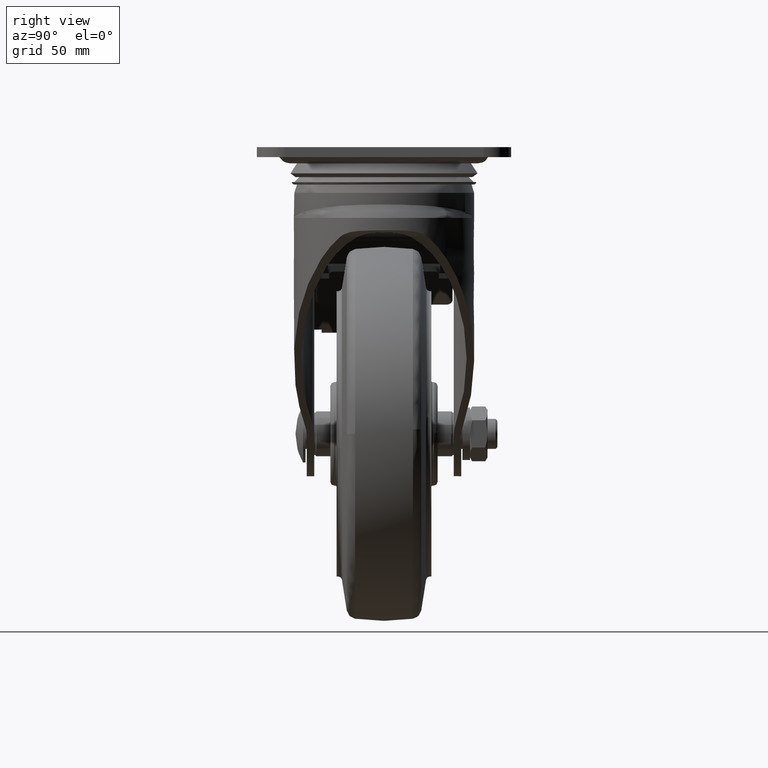
[diagram: clean part render]
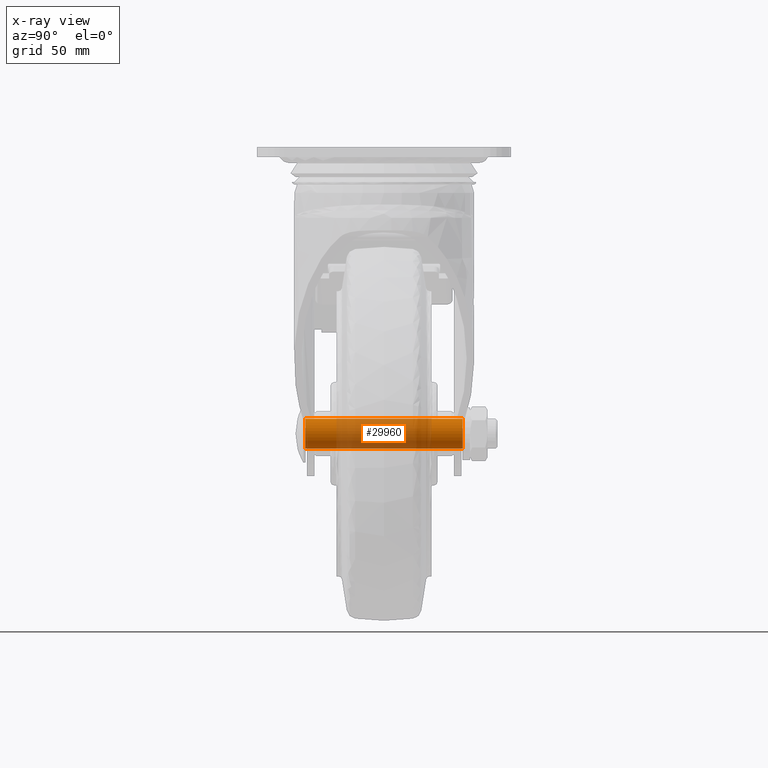
[diagram: x-ray — body ghosted, one internal face saturated and labeled with its STEP entity id]
A machine part, right view, then the same camera in x-ray: the body is ghosted and one INTERNAL B-rep face — a face not visible from any outside direction — is saturated and labeled: STEP entity #29960.
In plain terms, the highlighted face is a freeform B-spline surface patch.
Its self-contained STEP definition (entity closure, byte-faithful):
#29814=CARTESIAN_POINT('',(-4.581333857642716,-33.075000000000003,3.874452230292042));
#29815=CARTESIAN_POINT('',(-4.470448699389019,-33.075000000000003,4.005568037023624));
#29816=CARTESIAN_POINT('',(-4.352246226073658,-33.075000000000003,4.130127454162405));
#29817=CARTESIAN_POINT('',(-0.222118771911252,-33.074999999999996,8.482373680236007));
#29818=CARTESIAN_POINT('',(4.130127454162349,-33.075000000000003,4.352246226073601));
#29819=CARTESIAN_POINT('',(8.482373680235948,-33.074999999999996,0.222118771911195));
#29820=CARTESIAN_POINT('',(4.352246226073544,-33.075000000000003,-4.130127454162405));
#29821=CARTESIAN_POINT('',(0.222118771911139,-33.074999999999996,-8.482373680236007));
#29822=CARTESIAN_POINT('',(-4.130127454162462,-33.075000000000003,-4.352246226073601));
#29823=CARTESIAN_POINT('',(-4.581333857642716,33.114375000000003,3.874452230292042));
#29824=CARTESIAN_POINT('',(-4.470448699389019,33.114375000000010,4.005568037023624));
#29825=CARTESIAN_POINT('',(-4.352246226073658,33.114375000000010,4.130127454162405));
#29826=CARTESIAN_POINT('',(-0.222118771911252,33.114375000000010,8.482373680236007));
#29827=CARTESIAN_POINT('',(4.130127454162349,33.114375000000010,4.352246226073601));
#29828=CARTESIAN_POINT('',(8.482373680235948,33.114375000000010,0.222118771911195));
#29829=CARTESIAN_POINT('',(4.352246226073544,33.114375000000010,-4.130127454162405));
#29830=CARTESIAN_POINT('',(0.222118771911139,33.114375000000010,-8.482373680236007));
#29831=CARTESIAN_POINT('',(-4.130127454162462,33.114375000000010,-4.352246226073601));
#29839=(BOUNDED_SURFACE()B_SPLINE_SURFACE(2,1,((#29814,#29823),(#29815,#29824),(#29816,#29825),(#29817,#29826),(#29818,#29827),(#29819,#29828),(#29820,#29829),(#29821,#29830),(#29822,#29831)),.UNSPECIFIED.,.F.,.F.,.U.)B_SPLINE_SURFACE_WITH_KNOTS((3,2,2,2,3),(2,2),(0.0,0.397645019878160,10.338770516832160,20.279896013786150,30.221021510740140),(0.0,66.189375000000027),.UNSPECIFIED.)GEOMETRIC_REPRESENTATION_ITEM()RATIONAL_B_SPLINE_SURFACE(((0.977505800795127,0.977505800795127),(0.988284271247462,0.988284271247462),(1.0,1.0),(0.707106781186548,0.707106781186548),(1.0,1.0),(0.707106781186548,0.707106781186548),(1.0,1.0),(0.707106781186548,0.707106781186548),(1.0,1.0)))REPRESENTATION_ITEM('')SURFACE());
#29840=CARTESIAN_POINT('',(-4.581334386890070,31.500000000002050,3.874452867187674));
#29841=VERTEX_POINT('',#29840);
#29842=CARTESIAN_POINT('',(-5.684342E-014,31.500000000000000,5.999999999999830));
#29843=VERTEX_POINT('',#29842);
#29844=CARTESIAN_POINT('',(-4.581334386890070,31.500000000002050,3.874452867187674));
#29845=CARTESIAN_POINT('',(-4.178315269740406,31.500000000001879,4.351503840046598));
#29846=CARTESIAN_POINT('',(-3.429460812025594,31.500000000001560,4.997930189438035));
#29847=CARTESIAN_POINT('',(-1.872869367584610,31.500000000000849,5.785441295448821));
#29848=CARTESIAN_POINT('',(-0.760365430834218,31.500000000000441,6.000809706778524));
#29849=CARTESIAN_POINT('',(-5.684342E-014,31.500000000000000,5.999999999999830));
#29850=B_SPLINE_CURVE_WITH_KNOTS('',3,(#29844,#29845,#29846,#29847,#29848,#29849),.UNSPECIFIED.,.F.,.U.,(4,1,1,4),(0.000000089094434,1.873373471484985,2.932201303521822,5.212849969566464),.UNSPECIFIED.);
#29851=EDGE_CURVE('',#29841,#29843,#29850,.T.);
#29852=ORIENTED_EDGE('',*,*,#29851,.F.);
#29853=CARTESIAN_POINT('',(-4.581334388059084,-31.500000000000011,3.874452865805388));
#29854=VERTEX_POINT('',#29853);
#29855=CARTESIAN_POINT('',(-4.581334388059084,-31.500000000000011,3.874452865805388));
#29856=CARTESIAN_POINT('',(-4.581334386890070,31.500000000002050,3.874452867187674));
#29857=QUASI_UNIFORM_CURVE('',1,(#29855,#29856),.UNSPECIFIED.,.F.,.U.);
#29858=EDGE_CURVE('',#29854,#29841,#29857,.T.);
#29859=ORIENTED_EDGE('',*,*,#29858,.F.);
#29860=CARTESIAN_POINT('',(-5.684342E-014,-31.500000000000000,5.999999999999830));
#29861=VERTEX_POINT('',#29860);
#29862=CARTESIAN_POINT('',(-4.581334388059084,-31.500000000000011,3.874452865805388));
#29863=CARTESIAN_POINT('',(-4.213323821136394,-31.500000000000011,4.309965616528108));
#29864=CARTESIAN_POINT('',(-3.433860937361729,-31.499999999999979,5.001759343767882));
#29865=CARTESIAN_POINT('',(-1.873025816621857,-31.500000000000039,5.791449667027084));
#29866=CARTESIAN_POINT('',(-0.705999279841289,-31.500000000000000,6.000582281411428));
#29867=CARTESIAN_POINT('',(-5.684342E-014,-31.500000000000000,5.999999999999830));
#29868=B_SPLINE_CURVE_WITH_KNOTS('',3,(#29862,#29863,#29864,#29865,#29866,#29867),.UNSPECIFIED.,.F.,.U.,(4,1,1,4),(0.000000089094270,1.710475300791184,3.095101805493334,5.212849971376844),.UNSPECIFIED.);
#29869=EDGE_CURVE('',#29854,#29861,#29868,.T.);
#29870=ORIENTED_EDGE('',*,*,#29869,.T.);
#29871=CARTESIAN_POINT('',(5.999999999998861,-31.500000000000000,-0.000003307428363));
#29872=VERTEX_POINT('',#29871);
#29873=CARTESIAN_POINT('',(-5.684342E-014,-31.500000000000000,5.999999999999830));
#29874=CARTESIAN_POINT('',(0.638190360733784,-31.500000000000028,6.000393515256384));
#29875=CARTESIAN_POINT('',(1.644223124785011,-31.499999999999950,5.837855849953559));
#29876=CARTESIAN_POINT('',(2.864303129945427,-31.500000000000028,5.305865897004692));
#29877=CARTESIAN_POINT('',(3.809903995883099,-31.499999999999989,4.682451970186364));
#29878=CARTESIAN_POINT('',(4.534508333343463,-31.500000000000021,3.975402602073566));
#29879=CARTESIAN_POINT('',(5.182699763416541,-31.500000000000028,3.078582114481415));
#29880=CARTESIAN_POINT('',(5.796620701379285,-31.499999999999851,1.840447471246423));
#29881=CARTESIAN_POINT('',(6.000595794160542,-31.500000000000380,0.711857476441165));
#29882=CARTESIAN_POINT('',(5.999999999998861,-31.500000000000000,-0.000003307428363));
#29883=B_SPLINE_CURVE_WITH_KNOTS('',3,(#29873,#29874,#29875,#29876,#29877,#29878,#29879,#29880,#29881,#29882),.UNSPECIFIED.,.F.,.U.,(4,1,1,1,1,1,1,4),(0.000000254199069,1.914409426580395,3.018896298968556,3.976149413003196,5.301433270897665,6.037753552051791,7.289525101184353,9.424838961412345),.UNSPECIFIED.);
#29884=EDGE_CURVE('',#29861,#29872,#29883,.T.);
#29885=ORIENTED_EDGE('',*,*,#29884,.T.);
#29886=CARTESIAN_POINT('',(-5.684342E-014,-31.500000000000000,-5.999999999999830));
#29887=VERTEX_POINT('',#29886);
#29888=CARTESIAN_POINT('',(5.999999999998861,-31.500000000000000,-0.000003307428363));
#29889=CARTESIAN_POINT('',(6.000495286385196,-31.500000000000050,-0.687296171723726));
#29890=CARTESIAN_POINT('',(5.778285457564614,-31.499999999999869,-1.963236094531975));
#29891=CARTESIAN_POINT('',(4.912823391541159,-31.500000000000291,-3.582491009945367));
#29892=CARTESIAN_POINT('',(3.822999336929458,-31.499999999999609,-4.699247649432803));
#29893=CARTESIAN_POINT('',(2.713636518338647,-31.500000000000739,-5.392041699517275));
#29894=CARTESIAN_POINT('',(1.472501446280201,-31.499999999999460,-5.870822424201533));
#29895=CARTESIAN_POINT('',(0.564534583961164,-31.500000000000441,-6.000242818688029));
#29896=CARTESIAN_POINT('',(-5.684342E-014,-31.500000000000000,-5.999999999999830));
#29897=B_SPLINE_CURVE_WITH_KNOTS('',3,(#29888,#29889,#29890,#29891,#29892,#29893,#29894,#29895,#29896),.UNSPECIFIED.,.F.,.U.,(4,1,1,1,1,1,4),(0.000000255349592,2.061675425587431,3.828884660922242,5.448692185213617,6.700466053241069,7.731318516155196,9.424835233146334),.UNSPECIFIED.);
#29898=EDGE_CURVE('',#29872,#29887,#29897,.T.);
#29899=ORIENTED_EDGE('',*,*,#29898,.T.);
#29900=CARTESIAN_POINT('',(-4.130126723988932,-31.500000000000011,-4.352245780640549));
#29901=VERTEX_POINT('',#29900);
#29902=CARTESIAN_POINT('',(-5.684342E-014,-31.500000000000000,-5.999999999999830));
#29903=CARTESIAN_POINT('',(-0.711879504003936,-31.500000000000011,-6.000609079338815));
#29904=CARTESIAN_POINT('',(-1.707909609066392,-31.500000000000000,-5.820529854637965));
#29905=CARTESIAN_POINT('',(-3.093487474379242,-31.500000000000021,-5.189880073546668));
#29906=CARTESIAN_POINT('',(-3.751597536389882,-31.500000000000000,-4.711668457798398));
#29907=CARTESIAN_POINT('',(-4.130126723988932,-31.500000000000011,-4.352245780640549));
#29908=B_SPLINE_CURVE_WITH_KNOTS('',3,(#29902,#29903,#29904,#29905,#29906,#29907),.UNSPECIFIED.,.F.,.U.,(4,1,1,4),(0.000000030205444,2.135351778593823,2.989491052212633,4.555415629004779),.UNSPECIFIED.);
#29909=EDGE_CURVE('',#29887,#29901,#29908,.T.);
#29910=ORIENTED_EDGE('',*,*,#29909,.T.);
#29911=CARTESIAN_POINT('',(-4.130126722002759,31.499999999998170,-4.352245782525367));
#29912=VERTEX_POINT('',#29911);
#29913=CARTESIAN_POINT('',(-4.130126723988932,-31.500000000000011,-4.352245780640549));
#29914=CARTESIAN_POINT('',(-4.130126722002759,31.499999999998170,-4.352245782525367));
#29915=QUASI_UNIFORM_CURVE('',1,(#29913,#29914),.UNSPECIFIED.,.F.,.U.);
#29916=EDGE_CURVE('',#29901,#29912,#29915,.T.);
#29917=ORIENTED_EDGE('',*,*,#29916,.T.);
#29918=CARTESIAN_POINT('',(-5.684342E-014,31.500000000000000,-5.999999999999830));
#29919=VERTEX_POINT('',#29918);
#29920=CARTESIAN_POINT('',(-5.684342E-014,31.500000000000000,-5.999999999999830));
#29921=CARTESIAN_POINT('',(-0.711866174320958,31.499999999999680,-6.000602533372848));
#29922=CARTESIAN_POINT('',(-1.802804207974526,31.499999999999218,-5.803402968322031));
#29923=CARTESIAN_POINT('',(-3.175686261966646,31.499999999998622,-5.138708727884477));
#29924=CARTESIAN_POINT('',(-3.820391848069383,31.499999999998309,-4.646271218123972));
#29925=CARTESIAN_POINT('',(-4.130126722002759,31.499999999998170,-4.352245782525367));
#29926=B_SPLINE_CURVE_WITH_KNOTS('',3,(#29920,#29921,#29922,#29923,#29924,#29925),.UNSPECIFIED.,.F.,.U.,(4,1,1,4),(0.000000030205476,2.135351777310240,3.274204930457205,4.555415626266447),.UNSPECIFIED.);
#29927=EDGE_CURVE('',#29919,#29912,#29926,.T.);
#29928=ORIENTED_EDGE('',*,*,#29927,.F.);
#29929=CARTESIAN_POINT('',(5.999999999998861,31.500000000000000,-0.000003307428387));
#29930=VERTEX_POINT('',#29929);
#29931=CARTESIAN_POINT('',(5.999999999998861,31.500000000000000,-0.000003307428387));
#29932=CARTESIAN_POINT('',(6.000231598685525,31.500000000000000,-0.589063669157210));
#29933=CARTESIAN_POINT('',(5.825192693063862,31.500000000000000,-1.767086402514694));
#29934=CARTESIAN_POINT('',(5.167545752508200,31.500000000000082,-3.157654606622901));
#29935=CARTESIAN_POINT('',(4.397662836118027,31.499999999999979,-4.119166313651066));
#29936=CARTESIAN_POINT('',(3.613608889779752,31.500000000000021,-4.829871011073267));
#29937=CARTESIAN_POINT('',(2.713659662882515,31.500000000000011,-5.392068277197882));
#29938=CARTESIAN_POINT('',(1.472501596607334,31.499999999999979,-5.870834151122812));
#29939=CARTESIAN_POINT('',(0.564532507833974,31.500000000000050,-6.000221137047064));
#29940=CARTESIAN_POINT('',(-5.684342E-014,31.500000000000000,-5.999999999999830));
#29941=B_SPLINE_CURVE_WITH_KNOTS('',3,(#29931,#29932,#29933,#29934,#29935,#29936,#29937,#29938,#29939,#29940),.UNSPECIFIED.,.F.,.U.,(4,1,1,1,1,1,1,4),(0.000000255349907,1.767142570790514,3.534353841405782,4.565172635640986,5.448692185213557,6.700466053241043,7.731318516155177,9.424835233146325),.UNSPECIFIED.);
#29942=EDGE_CURVE('',#29930,#29919,#29941,.T.);
#29943=ORIENTED_EDGE('',*,*,#29942,.F.);
#29944=CARTESIAN_POINT('',(-5.684342E-014,31.500000000000000,5.999999999999830));
#29945=CARTESIAN_POINT('',(0.539978600313172,31.499999999999972,6.000192359942206));
#29946=CARTESIAN_POINT('',(1.447982734944443,31.500000000000060,5.876529381574426));
#29947=CARTESIAN_POINT('',(2.692728147520102,31.499999999999929,5.405145897894289));
#29948=CARTESIAN_POINT('',(3.592664405009227,31.500000000000021,4.842953263333853));
#29949=CARTESIAN_POINT('',(4.417433067092460,31.500000000000000,4.104588427765162));
#29950=CARTESIAN_POINT('',(5.044783649034438,31.499999999999989,3.310827465550336));
#29951=CARTESIAN_POINT('',(5.561096186255798,31.500000000000409,2.330435569056626));
#29952=CARTESIAN_POINT('',(5.910121862784350,31.499999999999211,1.251681281583277));
#29953=CARTESIAN_POINT('',(6.000087218547030,31.500000000001020,0.441780420184474));
#29954=CARTESIAN_POINT('',(5.999999999998861,31.500000000000000,-0.000003307428387));
#29955=B_SPLINE_CURVE_WITH_KNOTS('',3,(#29944,#29945,#29946,#29947,#29948,#29949,#29950,#29951,#29952,#29953,#29954),.UNSPECIFIED.,.F.,.U.,(4,1,1,1,1,1,1,1,4),(0.000000254200151,1.619877927041546,2.724371858515371,3.976149413003608,4.785973205734722,6.037753552051925,6.994997536148821,8.099505030667658,9.424838961412362),.UNSPECIFIED.);
#29956=EDGE_CURVE('',#29843,#29930,#29955,.T.);
#29957=ORIENTED_EDGE('',*,*,#29956,.F.);
#29958=EDGE_LOOP('',(#29852,#29859,#29870,#29885,#29899,#29910,#29917,#29928,#29943,#29957));
#29959=FACE_OUTER_BOUND('',#29958,.T.);
#29960=ADVANCED_FACE('',(#29959),#29839,.T.);